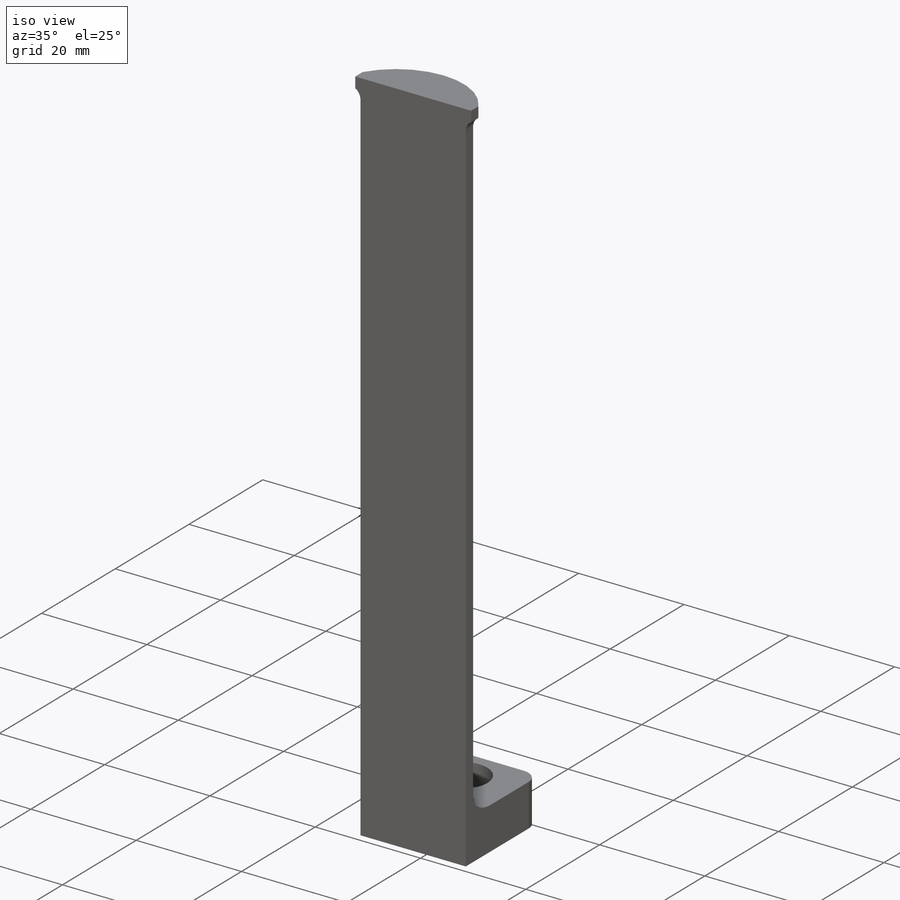
[diagram: iso view]
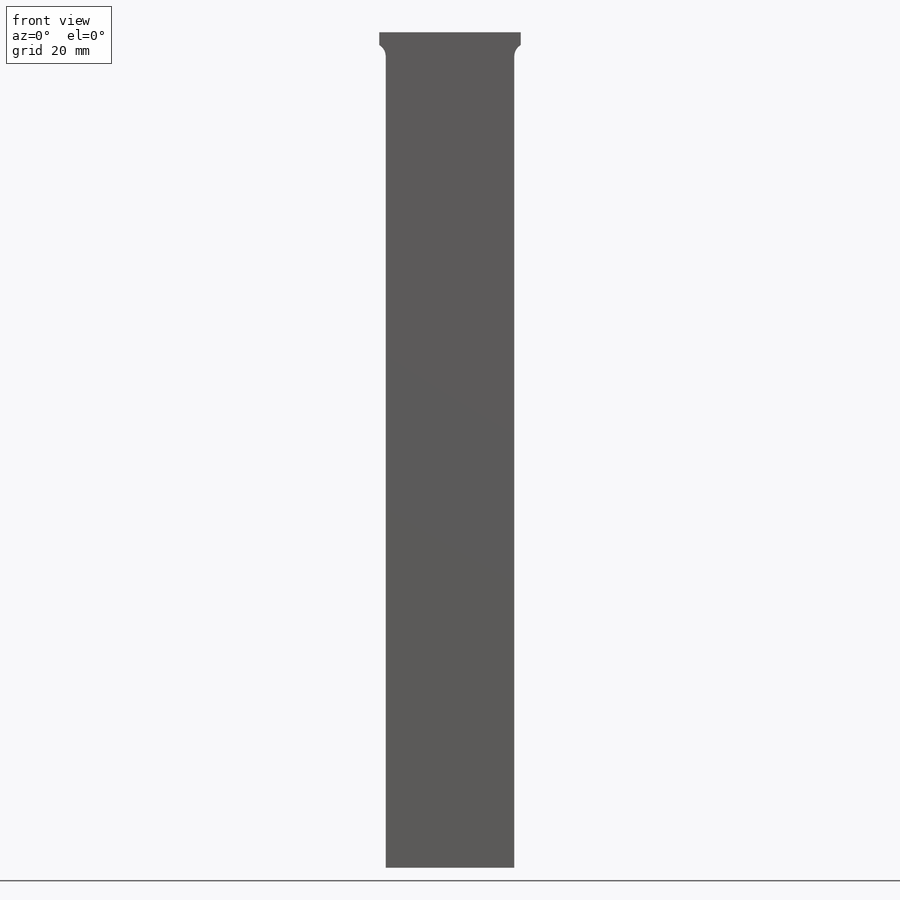
[diagram: front view]
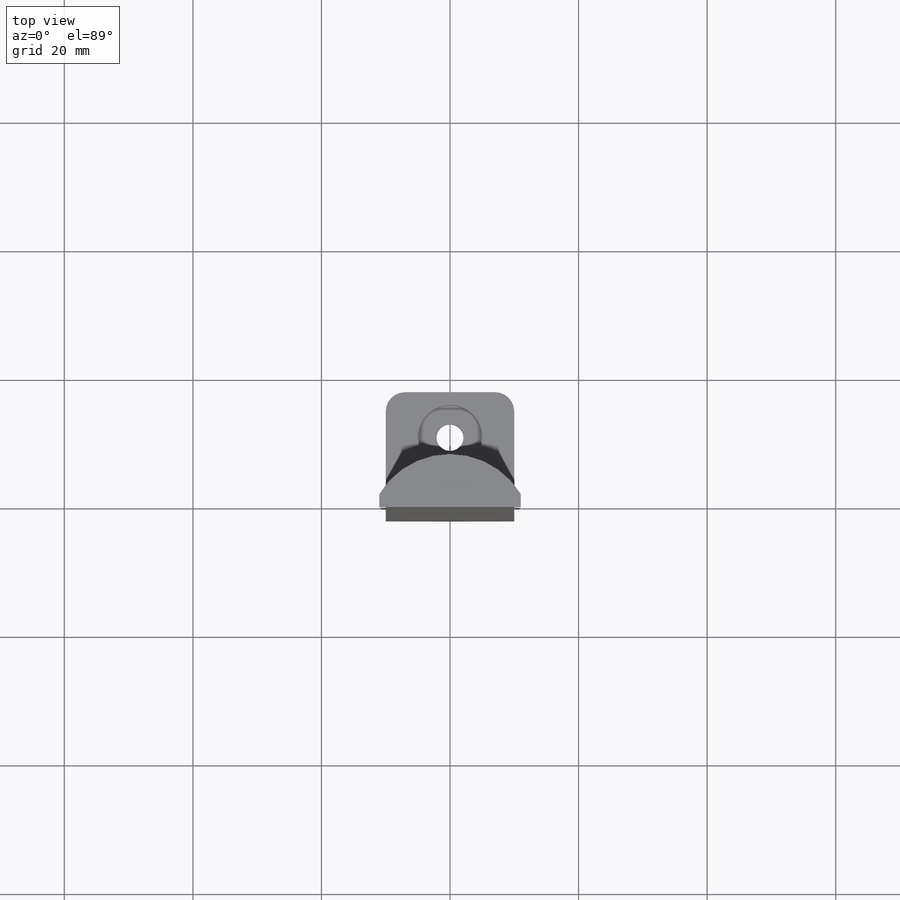
[diagram: top view]
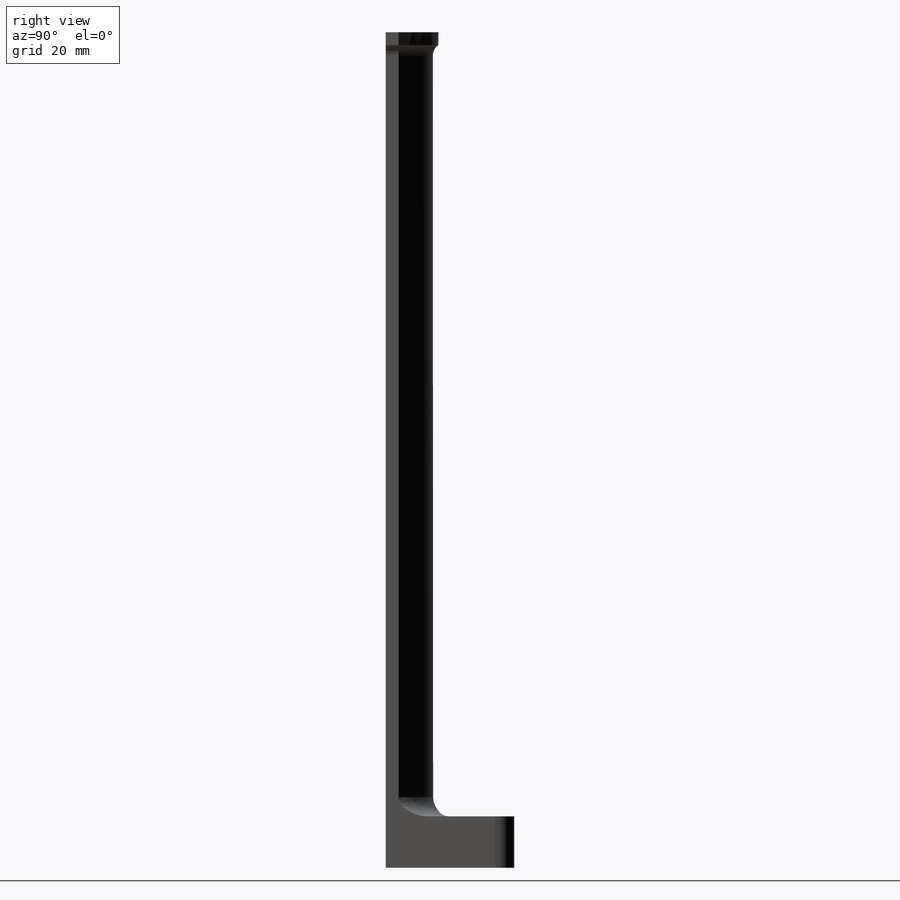
[diagram: right view]
SOLIDWORKS PART (.sldprt)
format: sldprt  version: not decoded by parser v0  size: 199,680 bytes
history: native  units: mm
features: sketch x6, extrude x4, plane x3, fillet x3, cut_extrude x2, material x1 (+8 scaffold rows collapsed)
feature tree (27):
  scaffold x8  (default folders/planes/origin — collapsed)
  material  "Matériau <non spécifié>"
  plane  "Plan de face"
  plane  "Plan de dessus"
  plane  "Plan de droite"
  sketch  "Esquisse2"  dims[D3=12.0mm D1=20.0mm D2=10.0mm]
  extrude  "Boss.-Extru.1"  Depth=120mm
  sketch  "Esquisse3"  dims[D1=18.0mm]
  extrude  "Boss.-Extru.2"  Depth=8mm
  fillet  "Congé1"  Radius=3mm
  fillet  "Congé2"  Radius=3mm
  sketch  "Esquisse4"  dims[D3=4.2mm D1=10.0mm D2=7.0mm]
  cut_extrude  "Enlèv. mat.-Extru.1"  [1 undecoded]
  sketch  "Esquisse5"  dims[D1=10.0mm]
  cut_extrude  "Enlèv. mat.-Extru.2"  Depth=4mm
  sketch  "Esquisse7"
  extrude  "Boss.-Extru.3"  Depth=2mm
  sketch  "Esquisse8"  dims[c1.D1=22.0mm c1.D2=11.0mm c1.D3=2.0mm c2.D2=1.0mm c2.D4=1.0mm c2.D5=22.0mm]
  extrude  "Boss.-Extru.4"  Depth=2mm
  fillet  "Congé3"  Radius=2mm
decode coverage: 13 of 15 modeling features carry decoded parameters
note: 1 parameter value undecoded
note: suppression state not decoded; provenance and decode notes live in map.json
